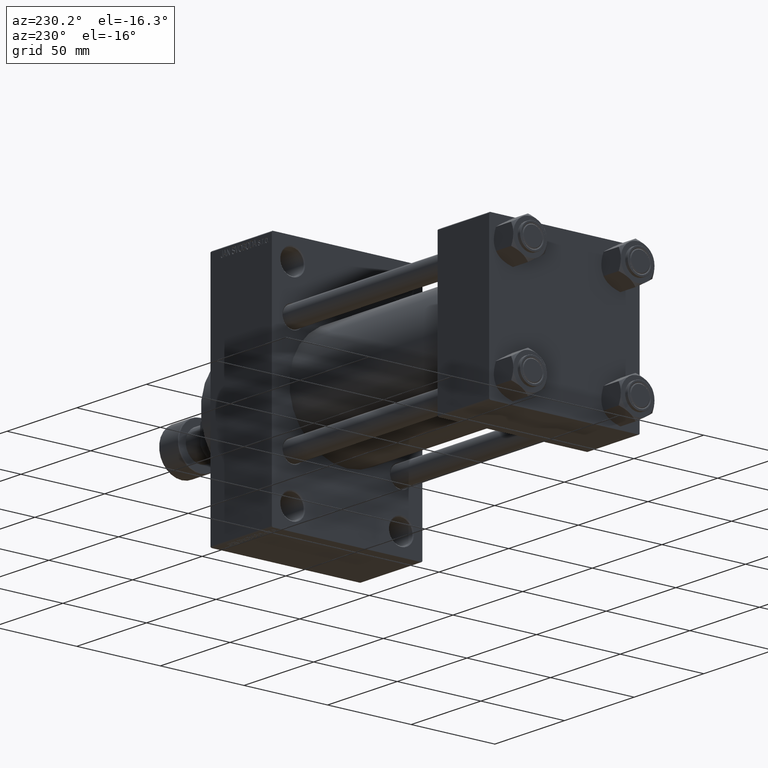
[diagram: clean part render]
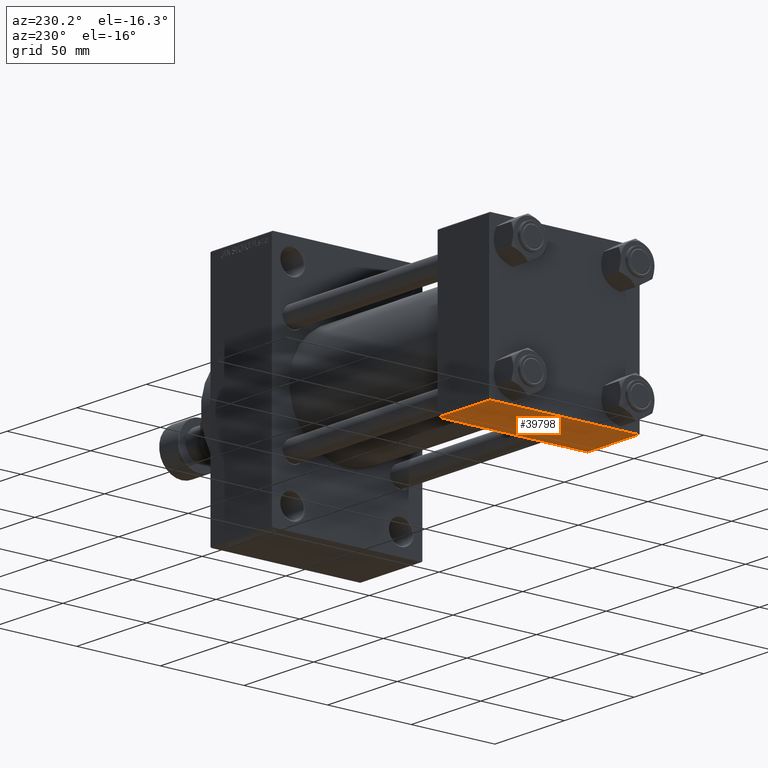
[diagram: same view with one face highlighted and labeled with its STEP entity id]
A machine part, auxiliary view. The second image highlights one B-rep face of the part: STEP entity #39798.
In plain terms, the highlighted planar face has unit normal (0, 0, -1).
Its self-contained STEP definition (entity closure, byte-faithful):
#1950 = LINE ( 'NONE', #26556, #29588 ) ;
#3471 = CARTESIAN_POINT ( 'NONE',  ( 37.00000000000000000, -44.49999999999994316, -45.00000000000000000 ) ) ;
#8514 = VECTOR ( 'NONE', #10499, 1000.000000000000000 ) ;
#10045 = CARTESIAN_POINT ( 'NONE',  ( 0.000000000000000000, -44.49999999999997158, -45.00000000000000000 ) ) ;
#10499 = DIRECTION ( 'NONE',  ( 1.000000000000000000, 0.000000000000000000, 0.000000000000000000 ) ) ;
#11680 = VECTOR ( 'NONE', #20437, 1000.000000000000000 ) ;
#15589 = CARTESIAN_POINT ( 'NONE',  ( 37.00000000000000000, 44.50000000000000000, -44.99999999999999289 ) ) ;
#17626 = VERTEX_POINT ( 'NONE', #3471 ) ;
#19269 = EDGE_CURVE ( 'NONE', #28108, #17626, #21163, .T. ) ;
#20437 = DIRECTION ( 'NONE',  ( 0.000000000000000000, -1.000000000000000000, -7.709882115452476934E-17 ) ) ;
#20814 = AXIS2_PLACEMENT_3D ( 'NONE', #24261, #45241, #42109 ) ;
#21163 = LINE ( 'NONE', #46235, #11680 ) ;
#23784 = VERTEX_POINT ( 'NONE', #36881 ) ;
#24261 = CARTESIAN_POINT ( 'NONE',  ( 37.00000000000000000, 45.00000000000000000, -44.99999999999999289 ) ) ;
#24626 = EDGE_CURVE ( 'NONE', #42422, #23784, #1950, .T. ) ;
#25240 = LINE ( 'NONE', #10045, #40008 ) ;
#25690 = EDGE_CURVE ( 'NONE', #17626, #23784, #25240, .T. ) ;
#26556 = CARTESIAN_POINT ( 'NONE',  ( 0.000000000000000000, 45.00000000000000000, -44.99999999999999289 ) ) ;
#26837 = CARTESIAN_POINT ( 'NONE',  ( 0.000000000000000000, 44.50000000000000000, -44.99999999999999289 ) ) ;
#28108 = VERTEX_POINT ( 'NONE', #15589 ) ;
#29588 = VECTOR ( 'NONE', #41264, 1000.000000000000000 ) ;
#30951 = ORIENTED_EDGE ( 'NONE', *, *, #24626, .F. ) ;
#32001 = DIRECTION ( 'NONE',  ( -1.000000000000000000, 0.000000000000000000, 0.000000000000000000 ) ) ;
#36881 = CARTESIAN_POINT ( 'NONE',  ( 0.000000000000000000, -44.49999999999994316, -45.00000000000000000 ) ) ;
#38739 = PLANE ( 'NONE',  #20814 ) ;
#38843 = ORIENTED_EDGE ( 'NONE', *, *, #40982, .T. ) ;
#39701 = LINE ( 'NONE', #43546, #8514 ) ;
#39798 = ADVANCED_FACE ( 'NONE', ( #41638 ), #38739, .T. ) ;
#40008 = VECTOR ( 'NONE', #32001, 1000.000000000000000 ) ;
#40982 = EDGE_CURVE ( 'NONE', #42422, #28108, #39701, .T. ) ;
#41264 = DIRECTION ( 'NONE',  ( 0.000000000000000000, -1.000000000000000000, -7.709882115452476934E-17 ) ) ;
#41638 = FACE_OUTER_BOUND ( 'NONE', #42904, .T. ) ;
#42109 = DIRECTION ( 'NONE',  ( 0.000000000000000000, 1.000000000000000000, 7.709882115452478166E-17 ) ) ;
#42422 = VERTEX_POINT ( 'NONE', #26837 ) ;
#42904 = EDGE_LOOP ( 'NONE', ( #30951, #38843, #45849, #46490 ) ) ;
#43546 = CARTESIAN_POINT ( 'NONE',  ( 37.00000000000000000, 44.50000000000000000, -44.99999999999999289 ) ) ;
#45241 = DIRECTION ( 'NONE',  ( 0.000000000000000000, 7.709882115452478166E-17, -1.000000000000000000 ) ) ;
#45849 = ORIENTED_EDGE ( 'NONE', *, *, #19269, .T. ) ;
#46235 = CARTESIAN_POINT ( 'NONE',  ( 37.00000000000000000, 45.00000000000000000, -44.99999999999999289 ) ) ;
#46490 = ORIENTED_EDGE ( 'NONE', *, *, #25690, .T. ) ;